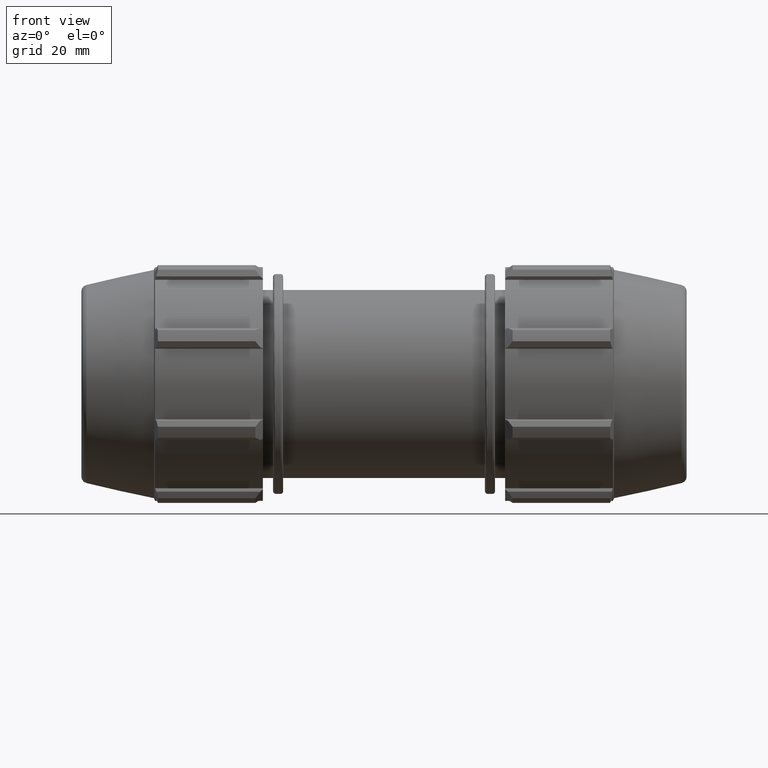
[diagram: clean part render]
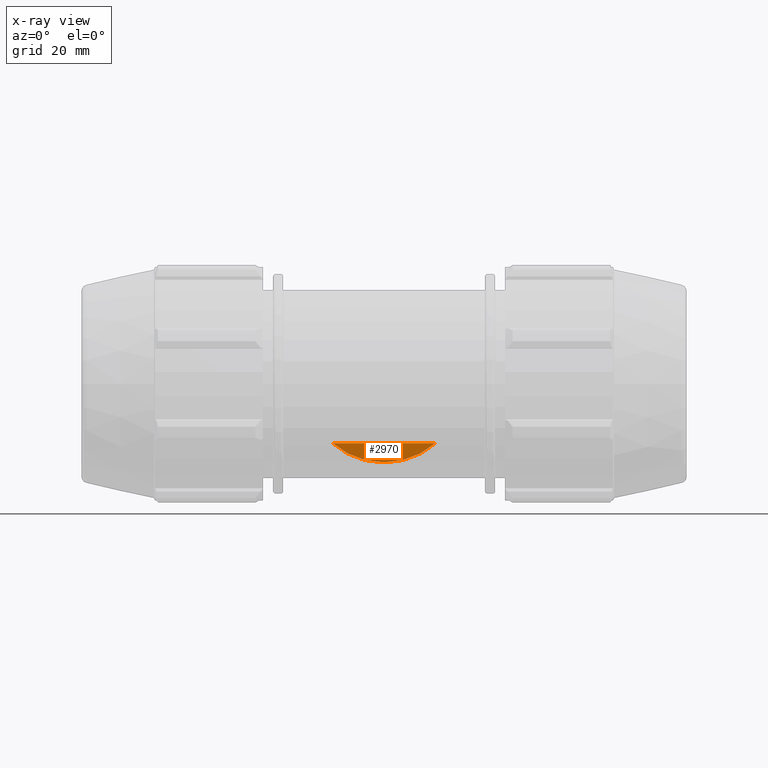
[diagram: x-ray — body ghosted, one internal face saturated and labeled with its STEP entity id]
A machine part, front view, then the same camera in x-ray: the body is ghosted and one INTERNAL B-rep face — a face not visible from any outside direction — is saturated and labeled: STEP entity #2970.
In plain terms, the highlighted planar face has unit normal (0, -1, 0).
Its self-contained STEP definition (entity closure, byte-faithful):
#99=PLANE('',#3254);
#284=CIRCLE('',#3251,29.807);
#488=LINE('',#5142,#686);
#686=VECTOR('',#3996,39.1002429148465);
#913=FACE_OUTER_BOUND('',#1114,.T.);
#1114=EDGE_LOOP('',(#2587,#2588));
#1405=VERTEX_POINT('',#5132);
#1406=VERTEX_POINT('',#5141);
#1797=EDGE_CURVE('',#1406,#1405,#488,.T.);
#1804=EDGE_CURVE('',#1406,#1405,#284,.T.);
#2587=ORIENTED_EDGE('',*,*,#1797,.T.);
#2588=ORIENTED_EDGE('',*,*,#1804,.F.);
#2970=ADVANCED_FACE('',(#913),#99,.T.);
#3251=AXIS2_PLACEMENT_3D('',#5248,#4007,#4008);
#3254=AXIS2_PLACEMENT_3D('',#5252,#4013,#4014);
#3996=DIRECTION('',(-1.,-5.59195078520197E-16,0.));
#4007=DIRECTION('center_axis',(-1.22464679914735E-16,1.,0.));
#4008=DIRECTION('ref_axis',(1.,1.22464679914735E-16,0.));
#4013=DIRECTION('center_axis',(1.22464679914735E-16,-1.,0.));
#4014=DIRECTION('ref_axis',(0.,0.,-1.));
#5132=CARTESIAN_POINT('',(-19.5501214574233,-2.39419936657754E-15,-22.5));
#5141=CARTESIAN_POINT('',(19.5501214574233,2.39419936657754E-15,-22.5));
#5142=CARTESIAN_POINT('',(22.,4.12408162309238E-15,-22.5));
#5248=CARTESIAN_POINT('Origin',(0.,0.,0.));
#5252=CARTESIAN_POINT('Origin',(-29.807,-2.22044604925031E-15,0.));